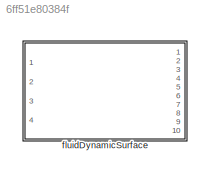
MODEL slx_6ff51e80384f
KIND library
CONFIG AbsTol = auto
CONFIG EnableMultiTasking = off
CONFIG FixedStep = auto
CONFIG MaxStep = auto
CONFIG MinStep = auto
CONFIG RelTol = 1e-3
CONFIG SampleTimeConstraint = Unconstrained
CONFIG SolverName = VariableStepAuto
CONFIG StartTime = 0.0
CONFIG StopTime = 10.0
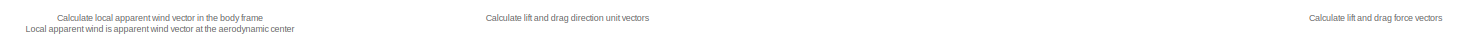
[diagram: fluidDynamicSurface - part 1/4, full width, top band]
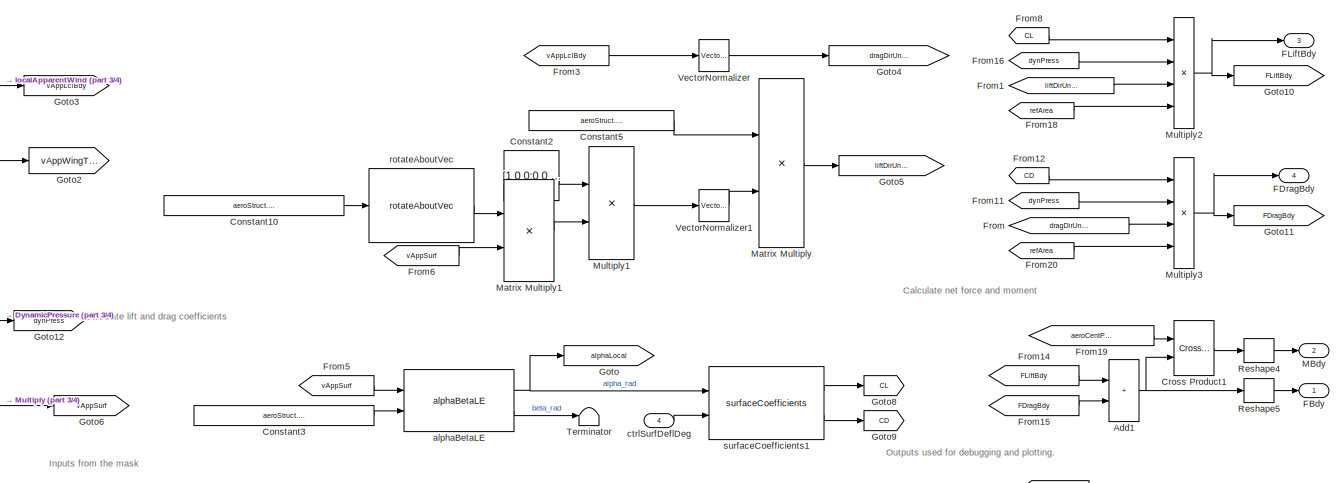
[diagram: fluidDynamicSurface - part 2/4, full width, middle band]
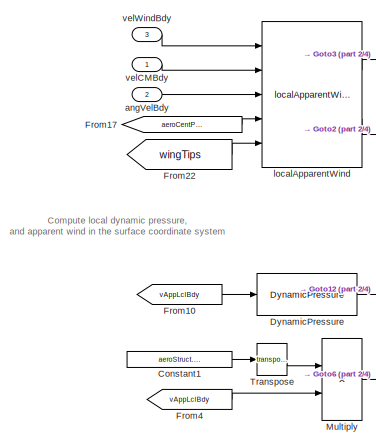
[diagram: fluidDynamicSurface - part 3/4, middle left region]
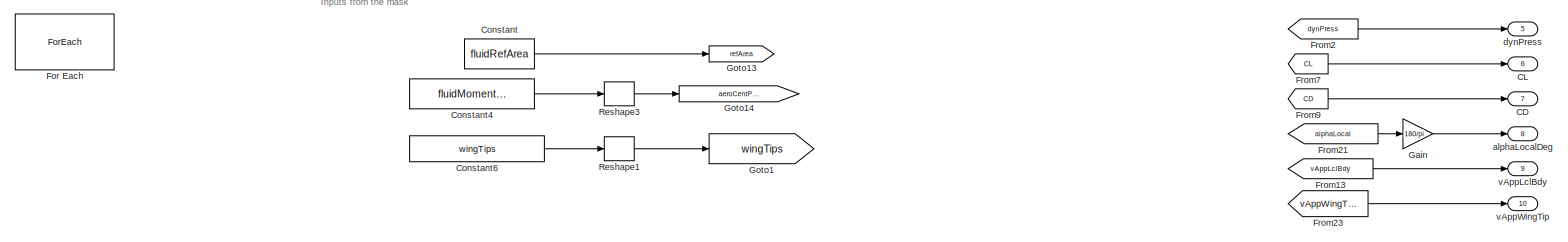
[diagram: fluidDynamicSurface - part 4/4, full width, bottom band]
BLOCK [SubSystem] fluidDynamicSurface
  MinAlgLoopOccurrences = on
  Ports = [4, 10]
  RequestExecContextInheritance = off
BLOCK [Sum] fluidDynamicSurface/Add1
  IconShape = rectangular
  Ports = [2, 1]
BLOCK [Outport] fluidDynamicSurface/CD
  ConcatenationDimension = 2
  Port = 7
  VectorParamsAs1DForOutWhenUnconnected = off
BLOCK [Outport] fluidDynamicSurface/CL
  ConcatenationDimension = 2
  Port = 6
  VectorParamsAs1DForOutWhenUnconnected = off
BLOCK [Constant] fluidDynamicSurface/Constant
  Value = fluidRefArea
BLOCK [Constant] fluidDynamicSurface/Constant1
  Value = aeroStruct.RSurf2Bdy
BLOCK [Constant] fluidDynamicSurface/Constant10
  Value = aeroStruct.incAlphaUnitVecSurf
BLOCK [Constant] fluidDynamicSurface/Constant2
  Value = [1 0 0;0 0 0;0 0 1]
BLOCK [Constant] fluidDynamicSurface/Constant3
  Value = aeroStruct.incAlphaUnitVecSurf
BLOCK [Constant] fluidDynamicSurface/Constant4
  Value = fluidMomentArms
BLOCK [Constant] fluidDynamicSurface/Constant5
  Value = aeroStruct.RSurf2Bdy
BLOCK [Constant] fluidDynamicSurface/Constant6
  Value = wingTips
BLOCK [Reference] fluidDynamicSurface/Cross Product1  REF=vrlib/Utilities/Cross Product
  Ports = [2, 1]
  SourceBlock = vrlib/Utilities/Cross Product
  SourceProductBaseCode = SL
  SourceType = Cross Product
BLOCK [Reference] fluidDynamicSurface/DynamicPressure  REF=dynamicPressure_ul/DynamicPressure
  Ports = [1, 1]
  SourceBlock = dynamicPressure_ul/DynamicPressure
BLOCK [Outport] fluidDynamicSurface/FBdy
  ConcatenationDimension = 2
  VectorParamsAs1DForOutWhenUnconnected = off
BLOCK [Outport] fluidDynamicSurface/FDragBdy
  ConcatenationDimension = 2
  Port = 4
  VectorParamsAs1DForOutWhenUnconnected = off
BLOCK [Outport] fluidDynamicSurface/FLiftBdy
  ConcatenationDimension = 2
  Port = 3
  VectorParamsAs1DForOutWhenUnconnected = off
BLOCK [ForEach] fluidDynamicSurface/For Each
  DisableCoverage = on
  IterateSubsysMaskParameter = on,off,on,off,on
  Ports = []
  SubsysMaskParameterIterationDimension = 2,1,2,1,2
  SubsysMaskParameterIterationStepSize = 1,1,1,1,1
BLOCK [From] fluidDynamicSurface/From
  GotoTag = dragDirUnitVecBdy
BLOCK [From] fluidDynamicSurface/From1
  GotoTag = liftDirUnitVecBdy
BLOCK [From] fluidDynamicSurface/From10
  GotoTag = vAppLclBdy
BLOCK [From] fluidDynamicSurface/From11
  GotoTag = dynPress
BLOCK [From] fluidDynamicSurface/From12
  GotoTag = CD
BLOCK [From] fluidDynamicSurface/From13
  GotoTag = vAppLclBdy
BLOCK [From] fluidDynamicSurface/From14
  GotoTag = FLiftBdy
BLOCK [From] fluidDynamicSurface/From15
  GotoTag = FDragBdy
BLOCK [From] fluidDynamicSurface/From16
  GotoTag = dynPress
BLOCK [From] fluidDynamicSurface/From17
  GotoTag = aeroCentPosVecBdy
BLOCK [From] fluidDynamicSurface/From18
  GotoTag = refArea
BLOCK [From] fluidDynamicSurface/From19
  GotoTag = aeroCentPosVecBdy
BLOCK [From] fluidDynamicSurface/From2
  GotoTag = dynPress
BLOCK [From] fluidDynamicSurface/From20
  GotoTag = refArea
BLOCK [From] fluidDynamicSurface/From21
  GotoTag = alphaLocal
BLOCK [From] fluidDynamicSurface/From22
  GotoTag = wingTips
BLOCK [From] fluidDynamicSurface/From23
  GotoTag = vAppWingTip
BLOCK [From] fluidDynamicSurface/From3
  GotoTag = vAppLclBdy
BLOCK [From] fluidDynamicSurface/From4
  GotoTag = vAppLclBdy
BLOCK [From] fluidDynamicSurface/From5
  GotoTag = vAppSurf
BLOCK [From] fluidDynamicSurface/From6
  GotoTag = vAppSurf
BLOCK [From] fluidDynamicSurface/From7
  GotoTag = CL
BLOCK [From] fluidDynamicSurface/From8
  GotoTag = CL
BLOCK [From] fluidDynamicSurface/From9
  GotoTag = CD
BLOCK [Gain] fluidDynamicSurface/Gain
  Gain = 180/pi
BLOCK [Goto] fluidDynamicSurface/Goto
  GotoTag = alphaLocal
BLOCK [Goto] fluidDynamicSurface/Goto1
  GotoTag = wingTips
BLOCK [Goto] fluidDynamicSurface/Goto10
  GotoTag = FLiftBdy
BLOCK [Goto] fluidDynamicSurface/Goto11
  GotoTag = FDragBdy
BLOCK [Goto] fluidDynamicSurface/Goto12
  GotoTag = dynPress
BLOCK [Goto] fluidDynamicSurface/Goto13
  GotoTag = refArea
BLOCK [Goto] fluidDynamicSurface/Goto14
  GotoTag = aeroCentPosVecBdy
BLOCK [Goto] fluidDynamicSurface/Goto2
  GotoTag = vAppWingTip
BLOCK [Goto] fluidDynamicSurface/Goto3
  GotoTag = vAppLclBdy
BLOCK [Goto] fluidDynamicSurface/Goto4
  GotoTag = dragDirUnitVecBdy
BLOCK [Goto] fluidDynamicSurface/Goto5
  GotoTag = liftDirUnitVecBdy
BLOCK [Goto] fluidDynamicSurface/Goto6
  GotoTag = vAppSurf
BLOCK [Goto] fluidDynamicSurface/Goto8
  GotoTag = CL
BLOCK [Goto] fluidDynamicSurface/Goto9
  GotoTag = CD
BLOCK [Outport] fluidDynamicSurface/MBdy
  ConcatenationDimension = 2
  Port = 2
  PortDimensions = [3 1]
  VectorParamsAs1DForOutWhenUnconnected = off
BLOCK [Product] fluidDynamicSurface/Matrix Multiply
  Multiplication = Matrix(*)
  Ports = [2, 1]
BLOCK [Product] fluidDynamicSurface/Matrix Multiply1
  Multiplication = Matrix(*)
  Ports = [2, 1]
BLOCK [Product] fluidDynamicSurface/Multiply
  Multiplication = Matrix(*)
  Ports = [2, 1]
BLOCK [Product] fluidDynamicSurface/Multiply1
  Multiplication = Matrix(*)
  Ports = [2, 1]
BLOCK [Product] fluidDynamicSurface/Multiply2
  Inputs = 4
  Ports = [4, 1]
BLOCK [Product] fluidDynamicSurface/Multiply3
  Inputs = 4
  Ports = [4, 1]
BLOCK [Reshape] fluidDynamicSurface/Reshape1
  OutputDimensionality = Column vector (2-D)
  Ports = [1, 1]
BLOCK [Reshape] fluidDynamicSurface/Reshape3
  OutputDimensionality = Column vector (2-D)
  Ports = [1, 1]
BLOCK [Reshape] fluidDynamicSurface/Reshape4
  OutputDimensionality = Column vector (2-D)
  Ports = [1, 1]
BLOCK [Reshape] fluidDynamicSurface/Reshape5
  OutputDimensionality = Column vector (2-D)
  Ports = [1, 1]
BLOCK [Terminator] fluidDynamicSurface/Terminator
BLOCK [Math] fluidDynamicSurface/Transpose
  Operator = transpose
  Ports = [1, 1]
  SignedPower = on
BLOCK [Reference] fluidDynamicSurface/VectorNormalizer   REF=vectorNormalizer_ul/VectorNormalizer

  Ports = [1, 1]
  SourceBlock = vectorNormalizer_ul/VectorNormalizer
  SourceType = SubSystem
BLOCK [Reference] fluidDynamicSurface/VectorNormalizer1  REF=vectorNormalizer_ul/VectorNormalizer

  Ports = [1, 1]
  SourceBlock = vectorNormalizer_ul/VectorNormalizer
  SourceType = SubSystem
BLOCK [Reference] fluidDynamicSurface/alphaBetaLE  REF=alphaBetaLE_ul/alphaBetaLE
  Ports = [2, 2]
  SourceBlock = alphaBetaLE_ul/alphaBetaLE
  SourceType = SubSystem
BLOCK [Outport] fluidDynamicSurface/alphaLocalDeg
  ConcatenationDimension = 2
  Port = 8
  VectorParamsAs1DForOutWhenUnconnected = off
BLOCK [Inport] fluidDynamicSurface/angVelBdy
  Port = 2
BLOCK [Inport] fluidDynamicSurface/ctrlSurfDeflDeg
  Partition = on
  PartitionDimension = 1
  PartitionOffset = 0
  PartitionWidth = 1
  Port = 4
BLOCK [Outport] fluidDynamicSurface/dynPress
  ConcatenationDimension = 2
  Port = 5
  VectorParamsAs1DForOutWhenUnconnected = off
BLOCK [Reference] fluidDynamicSurface/localApparentWind  REF=localApparentWind_ul/localApparentWind
  Ports = [5, 2]
  SourceBlock = localApparentWind_ul/localApparentWind
  SourceType = SubSystem
BLOCK [Reference] fluidDynamicSurface/rotateAboutVec  REF=rotateAboutVec/rotateAboutVec
  Ports = [1, 1]
  SourceBlock = rotateAboutVec/rotateAboutVec
BLOCK [Reference] fluidDynamicSurface/surfaceCoefficients1  REF=surfaceCoefficients_ul/surfaceCoefficients
  Ports = [2, 2]
  SourceBlock = surfaceCoefficients_ul/surfaceCoefficients
  SourceType = SubSystem
BLOCK [Outport] fluidDynamicSurface/vAppLclBdy
  ConcatenationDimension = 2
  Port = 9
  VectorParamsAs1DForOutWhenUnconnected = off
BLOCK [Outport] fluidDynamicSurface/vAppWingTip
  ConcatenationDimension = 2
  Port = 10
  VectorParamsAs1DForOutWhenUnconnected = off
BLOCK [Inport] fluidDynamicSurface/velCMBdy
BLOCK [Inport] fluidDynamicSurface/velWindBdy
  Partition = on
  PartitionDimension = 2
  PartitionOffset = 0
  PartitionWidth = 1
  Port = 3
ANNOTATION fluidDynamicSurface: Calculate lift and drag coefficients
ANNOTATION fluidDynamicSurface: Calculate lift and drag direction unit vectors
ANNOTATION fluidDynamicSurface: Calculate lift and drag force vectors
ANNOTATION fluidDynamicSurface: Calculate local apparent wind vector in the body frame Local apparent wind is apparent wind vector at the aerodynamic center
ANNOTATION fluidDynamicSurface: Calculate net force and moment
ANNOTATION fluidDynamicSurface: Compute local dynamic pressure, and apparent wind in the surface coordinate system
ANNOTATION fluidDynamicSurface: Inputs from the mask
ANNOTATION fluidDynamicSurface: Outputs used for debugging and plotting.
NET fluidDynamicSurface/Add1:1 -> fluidDynamicSurface/Cross Product1:2, fluidDynamicSurface/Reshape5:1
LINE fluidDynamicSurface/Constant10:1 -> fluidDynamicSurface/rotateAboutVec:1
LINE fluidDynamicSurface/Constant1:1 -> fluidDynamicSurface/Transpose:1
LINE fluidDynamicSurface/Constant2:1 -> fluidDynamicSurface/Multiply1:1
LINE fluidDynamicSurface/Constant3:1 -> fluidDynamicSurface/alphaBetaLE:2
LINE fluidDynamicSurface/Constant4:1 -> fluidDynamicSurface/Reshape3:1
LINE fluidDynamicSurface/Constant5:1 -> fluidDynamicSurface/Matrix Multiply:1
LINE fluidDynamicSurface/Constant6:1 -> fluidDynamicSurface/Reshape1:1
LINE fluidDynamicSurface/Constant:1 -> fluidDynamicSurface/Goto13:1
LINE fluidDynamicSurface/Cross Product1:1 -> fluidDynamicSurface/Reshape4:1
LINE fluidDynamicSurface/DynamicPressure:1 -> fluidDynamicSurface/Goto12:1
LINE fluidDynamicSurface/From10:1 -> fluidDynamicSurface/DynamicPressure:1
LINE fluidDynamicSurface/From11:1 -> fluidDynamicSurface/Multiply3:2
LINE fluidDynamicSurface/From12:1 -> fluidDynamicSurface/Multiply3:1
LINE fluidDynamicSurface/From13:1 -> fluidDynamicSurface/vAppLclBdy:1
LINE fluidDynamicSurface/From14:1 -> fluidDynamicSurface/Add1:1
LINE fluidDynamicSurface/From15:1 -> fluidDynamicSurface/Add1:2
LINE fluidDynamicSurface/From16:1 -> fluidDynamicSurface/Multiply2:2
LINE fluidDynamicSurface/From17:1 -> fluidDynamicSurface/localApparentWind:4
LINE fluidDynamicSurface/From18:1 -> fluidDynamicSurface/Multiply2:4
LINE fluidDynamicSurface/From19:1 -> fluidDynamicSurface/Cross Product1:1
LINE fluidDynamicSurface/From1:1 -> fluidDynamicSurface/Multiply2:3
LINE fluidDynamicSurface/From20:1 -> fluidDynamicSurface/Multiply3:4
LINE fluidDynamicSurface/From21:1 -> fluidDynamicSurface/Gain:1
LINE fluidDynamicSurface/From22:1 -> fluidDynamicSurface/localApparentWind:5
LINE fluidDynamicSurface/From23:1 -> fluidDynamicSurface/vAppWingTip:1
LINE fluidDynamicSurface/From2:1 -> fluidDynamicSurface/dynPress:1
LINE fluidDynamicSurface/From3:1 -> fluidDynamicSurface/VectorNormalizer :1
LINE fluidDynamicSurface/From4:1 -> fluidDynamicSurface/Multiply:2
LINE fluidDynamicSurface/From5:1 -> fluidDynamicSurface/alphaBetaLE:1
LINE fluidDynamicSurface/From6:1 -> fluidDynamicSurface/Matrix Multiply1:2
LINE fluidDynamicSurface/From7:1 -> fluidDynamicSurface/CL:1
LINE fluidDynamicSurface/From8:1 -> fluidDynamicSurface/Multiply2:1
LINE fluidDynamicSurface/From9:1 -> fluidDynamicSurface/CD:1
LINE fluidDynamicSurface/From:1 -> fluidDynamicSurface/Multiply3:3
LINE fluidDynamicSurface/Gain:1 -> fluidDynamicSurface/alphaLocalDeg:1
LINE fluidDynamicSurface/Matrix Multiply1:1 -> fluidDynamicSurface/Multiply1:2
LINE fluidDynamicSurface/Matrix Multiply:1 -> fluidDynamicSurface/Goto5:1
LINE fluidDynamicSurface/Multiply1:1 -> fluidDynamicSurface/VectorNormalizer1:1
NET fluidDynamicSurface/Multiply2:1 -> fluidDynamicSurface/FLiftBdy:1, fluidDynamicSurface/Goto10:1
NET fluidDynamicSurface/Multiply3:1 -> fluidDynamicSurface/FDragBdy:1, fluidDynamicSurface/Goto11:1
LINE fluidDynamicSurface/Multiply:1 -> fluidDynamicSurface/Goto6:1
LINE fluidDynamicSurface/Reshape1:1 -> fluidDynamicSurface/Goto1:1
LINE fluidDynamicSurface/Reshape3:1 -> fluidDynamicSurface/Goto14:1
LINE fluidDynamicSurface/Reshape4:1 -> fluidDynamicSurface/MBdy:1
LINE fluidDynamicSurface/Reshape5:1 -> fluidDynamicSurface/FBdy:1
LINE fluidDynamicSurface/Transpose:1 -> fluidDynamicSurface/Multiply:1
LINE fluidDynamicSurface/VectorNormalizer :1 -> fluidDynamicSurface/Goto4:1
LINE fluidDynamicSurface/VectorNormalizer1:1 -> fluidDynamicSurface/Matrix Multiply:2
NET fluidDynamicSurface/alphaBetaLE:1 -> fluidDynamicSurface/Goto:1, fluidDynamicSurface/surfaceCoefficients1:1
LINE fluidDynamicSurface/alphaBetaLE:2 -> fluidDynamicSurface/Terminator:1
LINE fluidDynamicSurface/angVelBdy:1 -> fluidDynamicSurface/localApparentWind:3
LINE fluidDynamicSurface/ctrlSurfDeflDeg:1 -> fluidDynamicSurface/surfaceCoefficients1:2
LINE fluidDynamicSurface/localApparentWind:1 -> fluidDynamicSurface/Goto3:1
LINE fluidDynamicSurface/localApparentWind:2 -> fluidDynamicSurface/Goto2:1
LINE fluidDynamicSurface/rotateAboutVec:1 -> fluidDynamicSurface/Matrix Multiply1:1
LINE fluidDynamicSurface/surfaceCoefficients1:1 -> fluidDynamicSurface/Goto8:1
LINE fluidDynamicSurface/surfaceCoefficients1:2 -> fluidDynamicSurface/Goto9:1
LINE fluidDynamicSurface/velCMBdy:1 -> fluidDynamicSurface/localApparentWind:2
LINE fluidDynamicSurface/velWindBdy:1 -> fluidDynamicSurface/localApparentWind:1
note: NET lines group one-source signal fan-out (src -> all destinations, sorted); 1:1 wires keep LINE
